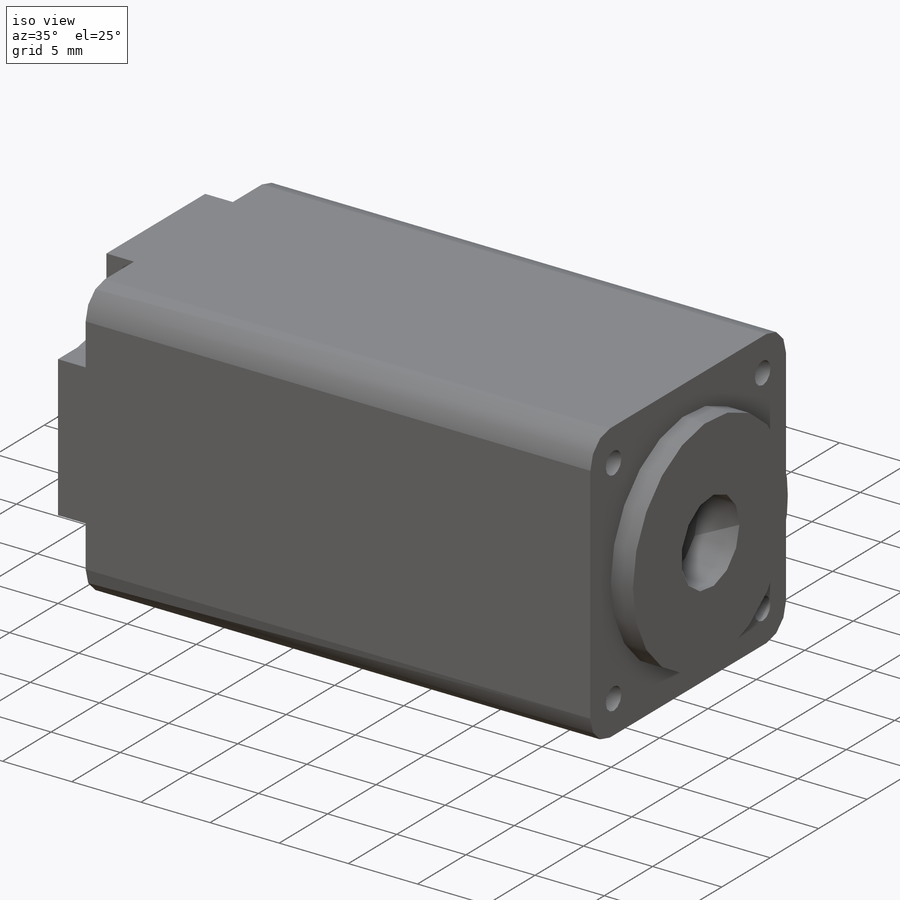
[diagram: iso view]
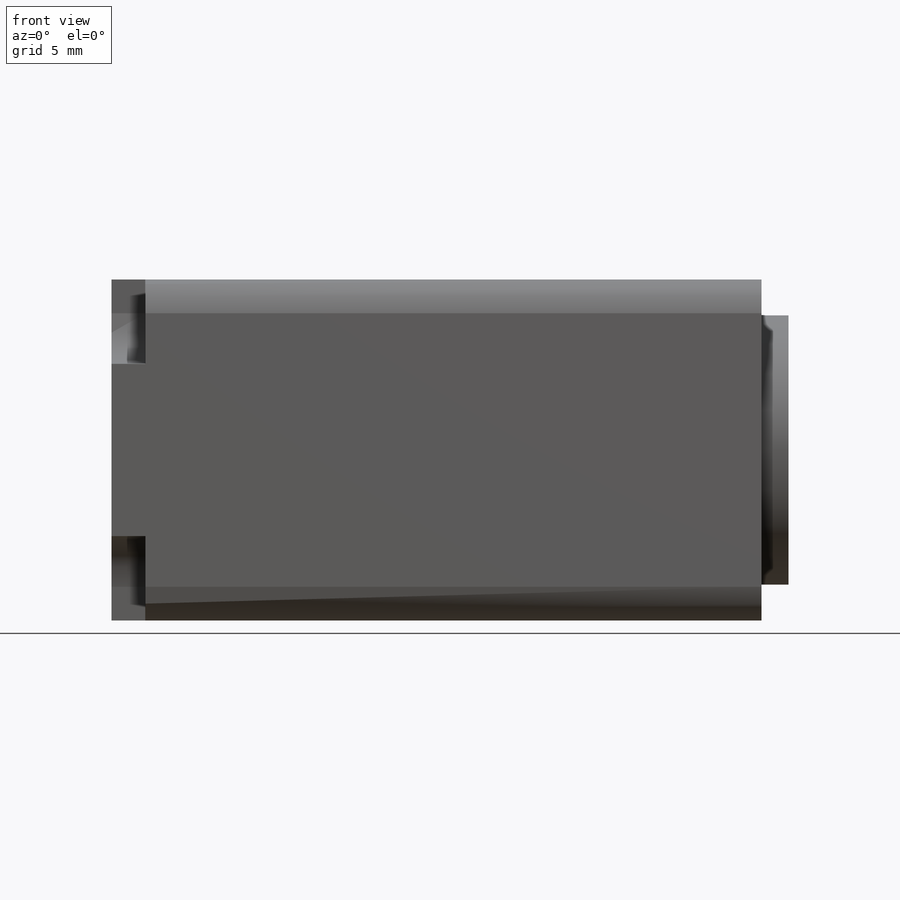
[diagram: front view]
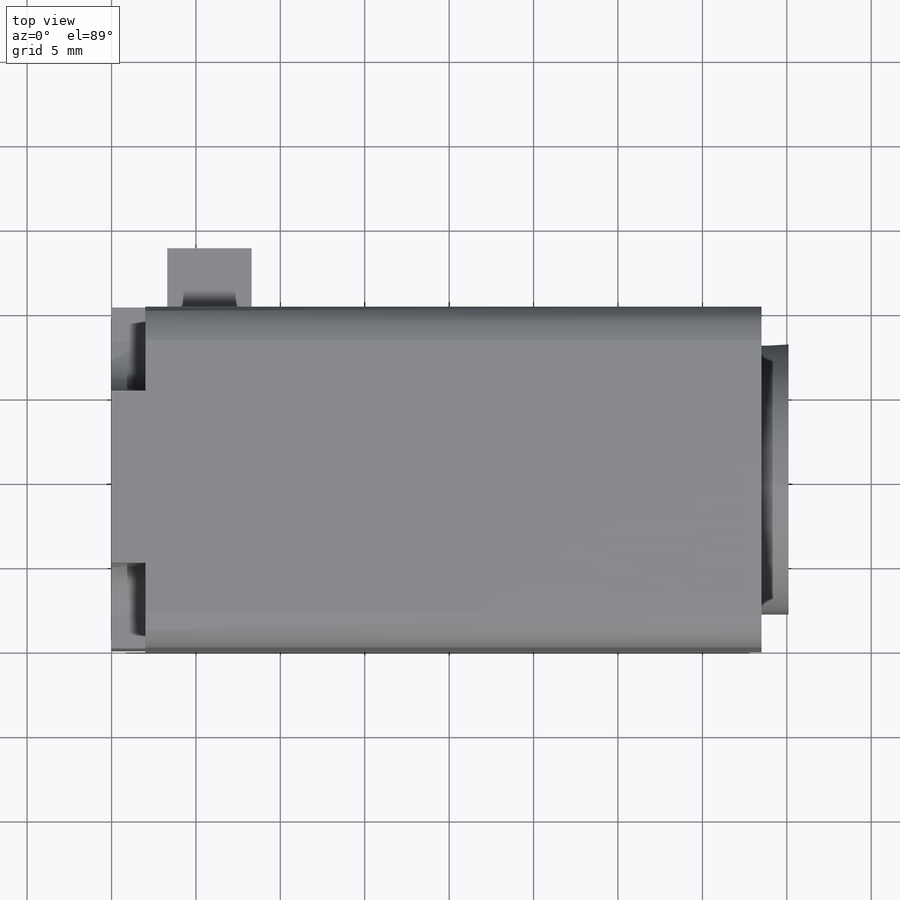
[diagram: top view]
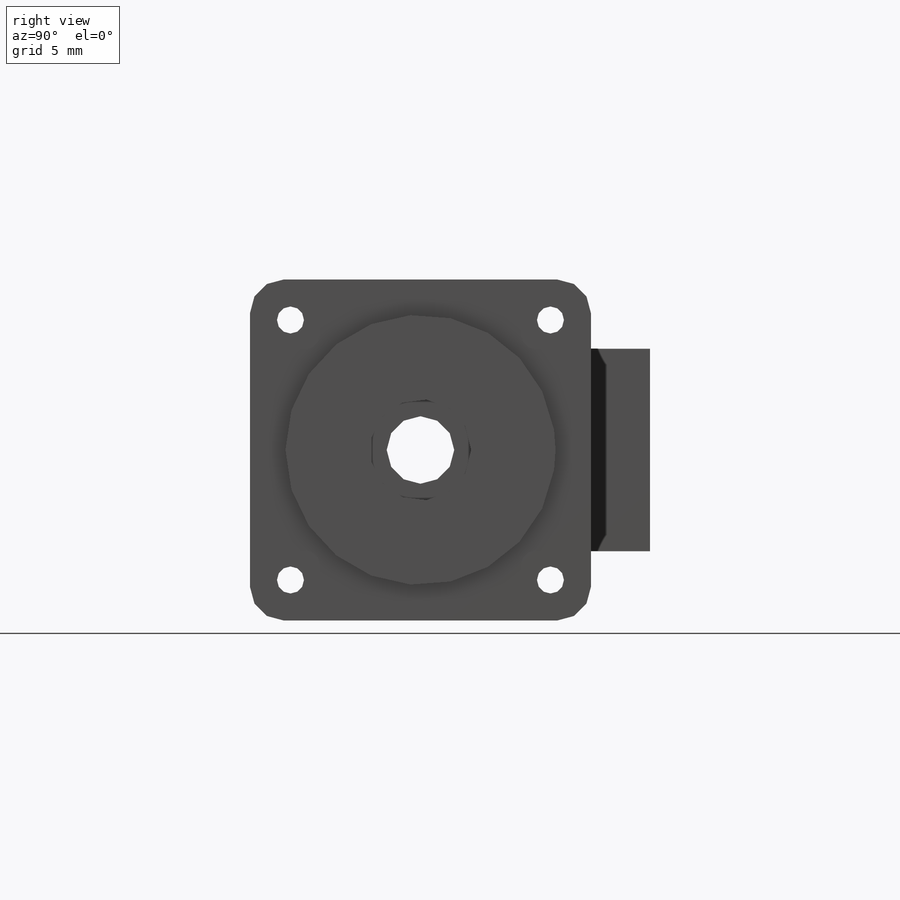
[diagram: right view]
SOLIDWORKS PART (.sldprt)
format: sldprt  version: not decoded by parser v0  size: 427,520 bytes
history: native  units: mm
features: sketch x10, cut_extrude x4, thread x4, plane x3, extrude x3, material x1, hole x1, fillet x1 (+8 scaffold rows collapsed)
feature tree (35):
  scaffold x8  (default folders/planes/origin — collapsed)
  material  "3.1355 (EN-AW 2024)"
  plane  "Спереди"
  plane  "Сверху"
  plane  "Справа"
  sketch  "Эскиз1"  dims[c1.D1=~23.503454mm c1.D2=~29.801031mm c2.D1=20.2mm]
  extrude  "Бобышка-Вытянуть1"  Depth=38.5mm
  sketch  "Эскиз2"  dims[D1=~25.512719mm]
  extrude  "Бобышка-Вытянуть2"  Depth=1.6mm
  sketch  "Эскиз3"  dims[c1.D2=3.0mm c1.D1=~2.489335mm c2.D2=~2.863438mm c2.D1=~2.197857mm c3.D2=~1.823754mm c3.D1=5.0mm]
  cut_extrude  "Вырез-Вытянуть1"  Depth=2mm
  sketch  "Эскиз4"  dims[c1.D1=~6.523427mm c1.D2=~9.750069mm c2.D1=15.4mm]
  hole  "Отверстие обработанное метчиком M2x0.41"  [1 undecoded]
  sketch  "Эскиз6"
  sketch  "Эскиз5"  dims[hole-wizard template sketch: 59 standard entries collapsed; hole parameters kept: c18.Диаметр проходного сверла=1.6mm c18.Глубина проходного сверла=38.1mm]
  thread  "Отверстие резьбы1"  Diameter=2mm  [1 undecoded]
  thread  "Отверстие резьбы2"  Diameter=2mm  [1 undecoded]
  thread  "Отверстие резьбы3"  Diameter=2mm  [1 undecoded]
  thread  "Отверстие резьбы4"  Diameter=2mm  [1 undecoded]
  fillet  "Скругление1"  Radius=2mm
  sketch  "Эскиз7"  dims[D1=4.0mm]
  cut_extrude  "Вырез-Вытянуть2"  [1 undecoded]
  sketch  "Эскиз8"  dims[D1=5.3mm]
  cut_extrude  "Вырез-Вытянуть3"  Depth=5.5mm
  sketch  "Эскиз9"  dims[D1=6.0mm]
  cut_extrude  "Вырез-Вытянуть4"  Depth=3mm
  sketch  "Эскиз10"  dims[c1.D1=~9.612263mm c1.D2=~4.160532mm c2.D1=5.0mm c2.D2=12.0mm c2.D3=3.3mm]
  extrude  "Бобышка-Вытянуть3"  Depth=3.5mm
decode coverage: 20 of 23 modeling features carry decoded parameters
note: ~ marks probable driven/reference dimensions
note: 6 parameter values undecoded
note: suppression state not decoded; provenance and decode notes live in map.json
